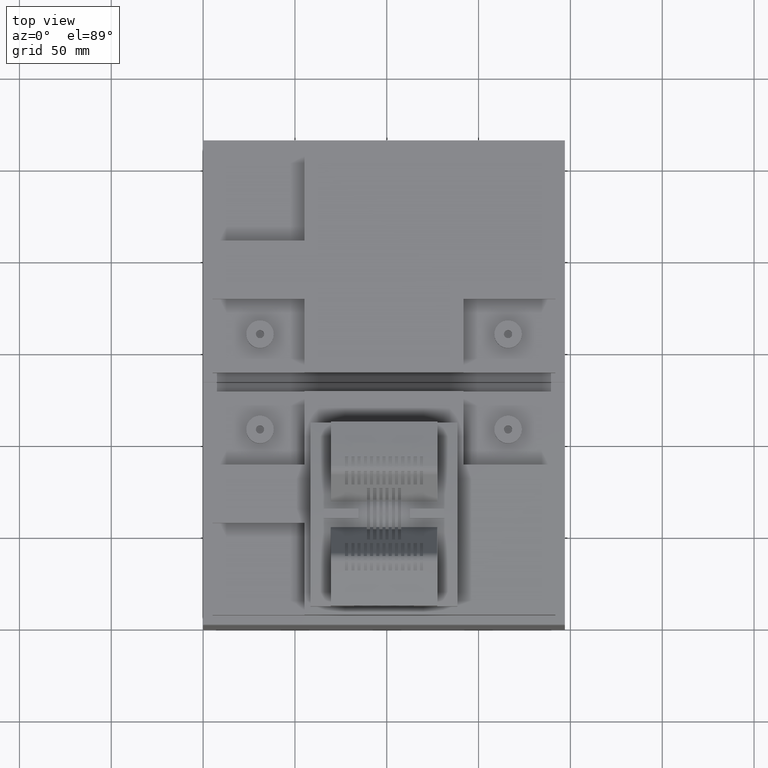
[diagram: clean part render]
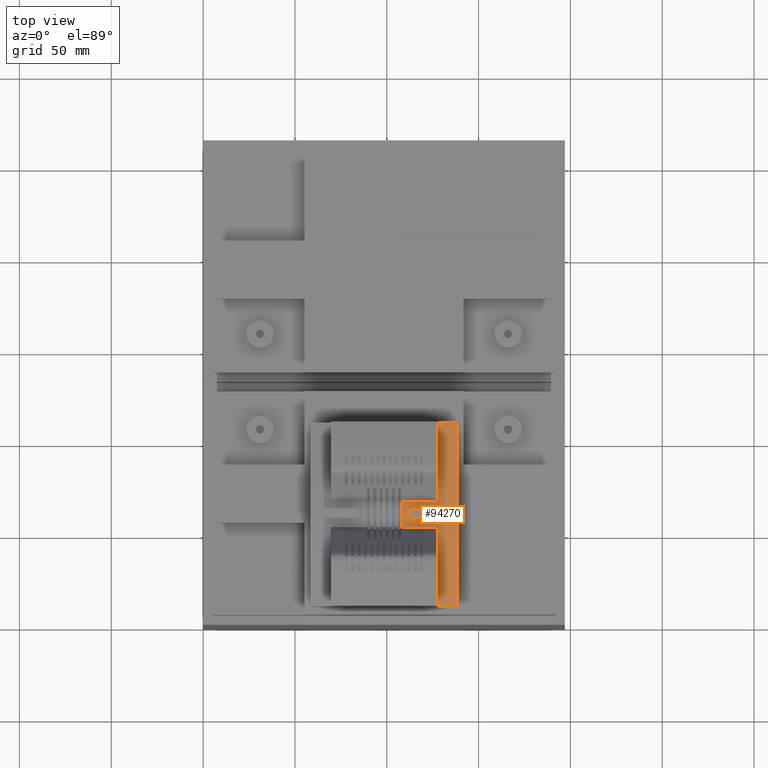
[diagram: same view with one face highlighted and labeled with its STEP entity id]
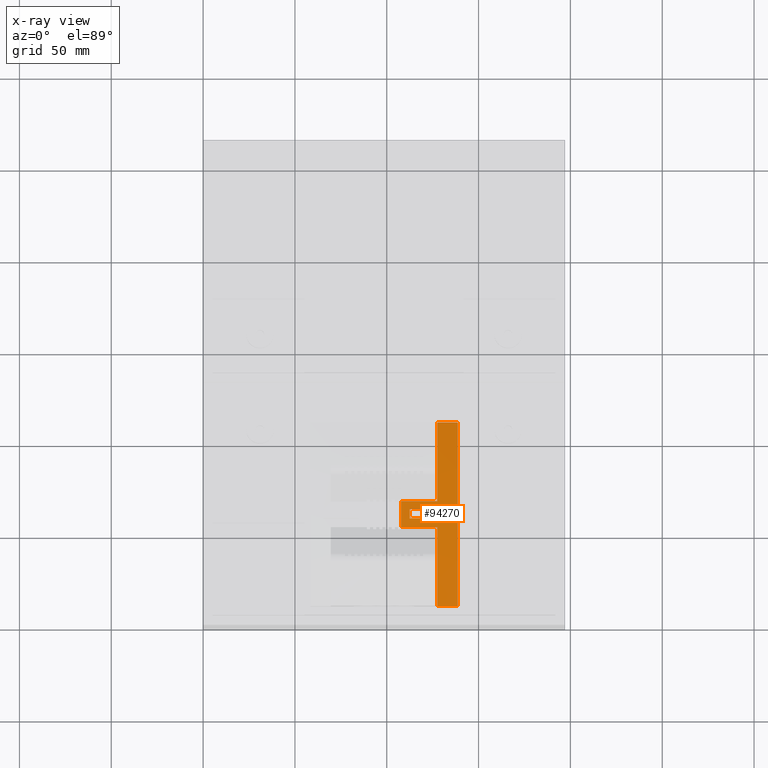
[diagram: x-ray of the same camera — body ghosted, the highlighted face saturated]
A machine part, top view. The second image highlights one B-rep face of the part: STEP entity #94270.
The next image is the same camera in x-ray: the body ghosted, the highlighted face saturated — about 0% of this face is hidden behind the body in this view.
In plain terms, the highlighted cylindrical surface (partial cylindrical patch) has radius 325 mm, axis along (1, 0, 0).
Its self-contained STEP definition (entity closure, byte-faithful):
#14530=CARTESIAN_POINT('',(138.5,364.05,193.830814466628));
#14540=VERTEX_POINT('',#14530);
#14570=CARTESIAN_POINT('',(107.349999999999,364.05,193.830814466628));
#14580=DIRECTION('',(1.,0.,0.));
#14590=VECTOR('',#14580,1.);
#14600=LINE('',#14570,#14590);
#14610=CARTESIAN_POINT('',(127.5,364.05,193.830814466628));
#14620=VERTEX_POINT('',#14610);
#14630=EDGE_CURVE('',#14620,#14540,#14600,.T.);
#16390=CARTESIAN_POINT('',(107.85,321.049999999997,197.624606639756));
#16400=VERTEX_POINT('',#16390);
#22540=CARTESIAN_POINT('',(127.5,321.049999999997,197.624606639756));
#22550=VERTEX_POINT('',#22540);
#22580=CARTESIAN_POINT('',(107.349999999999,321.049999999998,
197.624606639756));
#22590=DIRECTION('',(1.,0.,0.));
#22600=VECTOR('',#22590,1.);
#22610=LINE('',#22580,#22600);
#22620=EDGE_CURVE('',#16400,#22550,#22610,.T.);
#28450=CARTESIAN_POINT('',(107.85,307.050000000002,197.624606639755));
#28460=VERTEX_POINT('',#28450);
#28490=CARTESIAN_POINT('',(107.349999999999,307.050000000002,
197.624606639756));
#28500=DIRECTION('',(1.,0.,0.));
#28510=VECTOR('',#28500,1.);
#28520=LINE('',#28490,#28510);
#28530=CARTESIAN_POINT('',(127.5,307.050000000002,197.624606639755));
#28540=VERTEX_POINT('',#28530);
#28550=EDGE_CURVE('',#28460,#28540,#28520,.T.);
#38940=CARTESIAN_POINT('',(127.5,314.05,-127.3));
#38950=DIRECTION('',(1.,0.,0.));
#38960=DIRECTION('',(0.,-1.,0.));
#38970=AXIS2_PLACEMENT_3D('',#38940,#38950,#38960);
#38980=CIRCLE('',#38970,325.);
#38990=EDGE_CURVE('',#14620,#22550,#38980,.T.);
#93490=CARTESIAN_POINT('',(107.349999999999,314.05,-127.3));
#93500=DIRECTION('',(1.,0.,0.));
#93510=DIRECTION('',(0.,-1.,0.));
#93520=AXIS2_PLACEMENT_3D('',#93490,#93500,#93510);
#93530=CYLINDRICAL_SURFACE('',#93520,325.);
#93540=ORIENTED_EDGE('',*,*,#28550,.T.);
#93550=CARTESIAN_POINT('',(107.85,314.05,-127.3));
#93560=DIRECTION('',(1.,0.,0.));
#93570=DIRECTION('',(0.,-1.,0.));
#93580=AXIS2_PLACEMENT_3D('',#93550,#93560,#93570);
#93590=CIRCLE('',#93580,325.);
#93600=EDGE_CURVE('',#16400,#28460,#93590,.T.);
#93610=ORIENTED_EDGE('',*,*,#93600,.T.);
#93620=ORIENTED_EDGE('',*,*,#22620,.F.);
#93630=ORIENTED_EDGE('',*,*,#38990,.T.);
#93640=ORIENTED_EDGE('',*,*,#14630,.F.);
#93650=CARTESIAN_POINT('',(138.5,314.05,-127.3));
#93660=DIRECTION('',(1.,0.,0.));
#93670=DIRECTION('',(0.,-1.,0.));
#93680=AXIS2_PLACEMENT_3D('',#93650,#93660,#93670);
#93690=CIRCLE('',#93680,325.);
#93700=CARTESIAN_POINT('',(138.5,264.05,193.830814466628));
#93710=VERTEX_POINT('',#93700);
#93720=EDGE_CURVE('',#14540,#93710,#93690,.T.);
#93730=ORIENTED_EDGE('',*,*,#93720,.F.);
#93740=CARTESIAN_POINT('',(107.349999999999,264.05,193.830814466628));
#93750=DIRECTION('',(1.,0.,0.));
#93760=VECTOR('',#93750,1.);
#93770=LINE('',#93740,#93760);
#93780=CARTESIAN_POINT('',(127.5,264.05,193.830814466628));
#93790=VERTEX_POINT('',#93780);
#93800=EDGE_CURVE('',#93790,#93710,#93770,.T.);
#93810=ORIENTED_EDGE('',*,*,#93800,.T.);
#93820=CARTESIAN_POINT('',(127.5,314.05,-127.3));
#93830=DIRECTION('',(1.,0.,0.));
#93840=DIRECTION('',(0.,-1.,0.));
#93850=AXIS2_PLACEMENT_3D('',#93820,#93830,#93840);
#93860=CIRCLE('',#93850,325.);
#93870=EDGE_CURVE('',#28540,#93790,#93860,.T.);
#93880=ORIENTED_EDGE('',*,*,#93870,.T.);
#93890=EDGE_LOOP('',(#93880,#93810,#93730,#93640,#93630,#93620,#93610,
#93540));
#93900=FACE_OUTER_BOUND('',#93890,.T.);
#93910=CARTESIAN_POINT('',(131.5,314.05,-127.3));
#93920=DIRECTION('',(1.,0.,0.));
#93930=DIRECTION('',(0.,-1.,0.));
#93940=AXIS2_PLACEMENT_3D('',#93910,#93920,#93930);
#93950=CIRCLE('',#93940,325.);
#93960=CARTESIAN_POINT('',(131.5,316.88,197.687678381812));
#93970=VERTEX_POINT('',#93960);
#93980=CARTESIAN_POINT('',(131.5,311.8,197.692211445136));
#93990=VERTEX_POINT('',#93980);
#94000=EDGE_CURVE('',#93970,#93990,#93950,.T.);
#94010=ORIENTED_EDGE('',*,*,#94000,.T.);
#94020=CARTESIAN_POINT('',(107.349999999999,316.88,197.687678381812));
#94030=DIRECTION('',(1.,0.,0.));
#94040=VECTOR('',#94030,1.);
#94050=LINE('',#94020,#94040);
#94060=CARTESIAN_POINT('',(112.5,316.88,197.687678381812));
#94070=VERTEX_POINT('',#94060);
#94080=EDGE_CURVE('',#94070,#93970,#94050,.T.);
#94090=ORIENTED_EDGE('',*,*,#94080,.T.);
#94100=CARTESIAN_POINT('',(112.5,314.05,-127.3));
#94110=DIRECTION('',(1.,0.,0.));
#94120=DIRECTION('',(0.,-1.,0.));
#94130=AXIS2_PLACEMENT_3D('',#94100,#94110,#94120);
#94140=CIRCLE('',#94130,325.);
#94150=CARTESIAN_POINT('',(112.5,311.8,197.692211445136));
#94160=VERTEX_POINT('',#94150);
#94170=EDGE_CURVE('',#94070,#94160,#94140,.T.);
#94180=ORIENTED_EDGE('',*,*,#94170,.F.);
#94190=CARTESIAN_POINT('',(107.349999999999,311.8,197.692211445136));
#94200=DIRECTION('',(1.,0.,0.));
#94210=VECTOR('',#94200,1.);
#94220=LINE('',#94190,#94210);
#94230=EDGE_CURVE('',#94160,#93990,#94220,.T.);
#94240=ORIENTED_EDGE('',*,*,#94230,.F.);
#94250=EDGE_LOOP('',(#94240,#94180,#94090,#94010));
#94260=FACE_BOUND('',#94250,.T.);
#94270=ADVANCED_FACE('',(#93900,#94260),#93530,.T.);